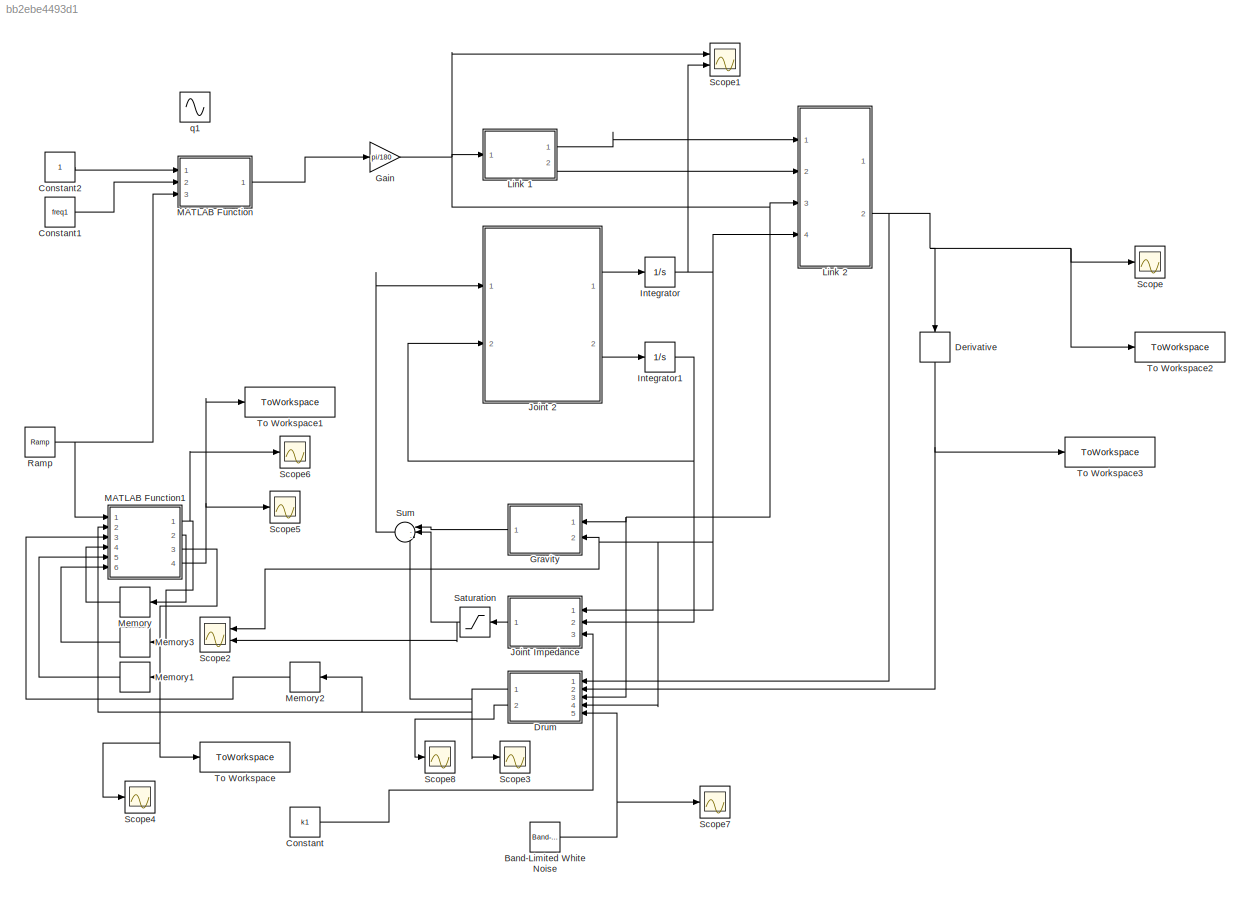
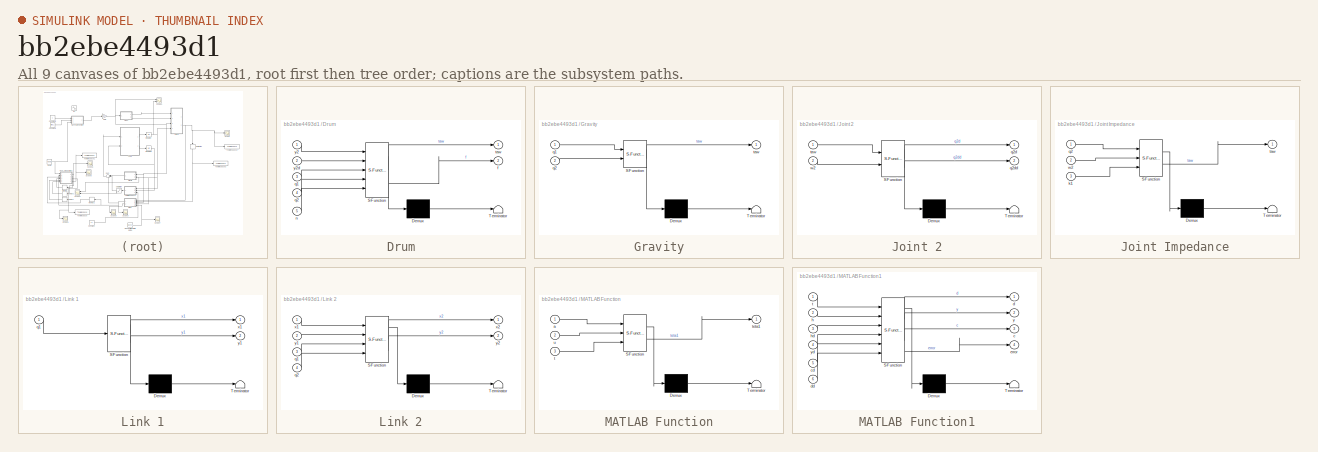
[diagram: thumbnail index - all 9 canvases of the model, root first then tree order]
MODEL slx_bb2ebe4493d1
KIND model
CONFIG AbsTol = auto
CONFIG EnableMultiTasking = off
CONFIG FixedStep = 0.00003
CONFIG MaxStep = auto
CONFIG MinStep = auto
CONFIG RelTol = 1e-3
CONFIG SampleTimeConstraint = Unconstrained
CONFIG Solver = ode8
CONFIG SolverName = ode8
CONFIG StartTime = 0.0
CONFIG StopTime = 2
BLOCK [Reference] Band-Limited White Noise  REF=simulink/Sources/Band-Limited
White Noise
  Ports = [0, 1]
  SourceBlock = simulink/Sources/Band-Limited\nWhite Noise
  SourceProductBaseCode = SL
  SourceType = Band-Limited White Noise.
BLOCK [Constant] Constant
  Value = k1
BLOCK [Constant] Constant1
  Value = freq1
BLOCK [Constant] Constant2
BLOCK [Derivative] Derivative
  NameLocation = left
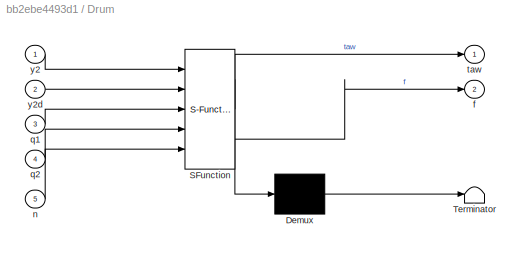
BLOCK [SubSystem] Drum
  ErrorFcn = Stateflow.Translate.translate
  NameLocation = top
  PermitHierarchicalResolution = ExplicitOnly
  Ports = [5, 2]
  RequestExecContextInheritance = off
  SFBlockType = MATLAB Function
  TreatAsAtomicUnit = on
BLOCK [Demux] Drum/ Demux 
  Outputs = 1
  Ports = [1, 1]
BLOCK [S-Function] Drum/ SFunction 
  EnableBusSupport = on
  FunctionName = sf_sfun
  PortCounts = [5 3]
  Ports = [5, 3]
  SFcnIsStateOwnerBlock = off
  SFunctionDeploymentMode = off
  Tag = Stateflow S-Function 6
BLOCK [Terminator] Drum/ Terminator 
BLOCK [Outport] Drum/f
  Port = 2
BLOCK [Inport] Drum/n
  Port = 5
BLOCK [Inport] Drum/q1
  Port = 3
BLOCK [Inport] Drum/q2
  Port = 4
BLOCK [Outport] Drum/taw
BLOCK [Inport] Drum/y2
BLOCK [Inport] Drum/y2d
  Port = 2
BLOCK [Gain] Gain
  Gain = pi/180
BLOCK [SubSystem] Gravity
  ErrorFcn = Stateflow.Translate.translate
  NameLocation = top
  PermitHierarchicalResolution = ExplicitOnly
  Ports = [2, 1]
  RequestExecContextInheritance = off
  SFBlockType = MATLAB Function
  TreatAsAtomicUnit = on
BLOCK [Demux] Gravity/ Demux 
  Outputs = 1
  Ports = [1, 1]
BLOCK [S-Function] Gravity/ SFunction 
  EnableBusSupport = on
  FunctionName = sf_sfun
  PortCounts = [2 2]
  Ports = [2, 2]
  SFcnIsStateOwnerBlock = off
  SFunctionDeploymentMode = off
  Tag = Stateflow S-Function 3
BLOCK [Terminator] Gravity/ Terminator 
BLOCK [Inport] Gravity/q1
BLOCK [Inport] Gravity/q2
  Port = 2
BLOCK [Outport] Gravity/taw
BLOCK [Integrator] Integrator
  InitialCondition = -15*pi/180
  Ports = [1, 1]
BLOCK [Integrator] Integrator1
  Ports = [1, 1]
BLOCK [SubSystem] Joint 2
  ErrorFcn = Stateflow.Translate.translate
  PermitHierarchicalResolution = ExplicitOnly
  Ports = [2, 2]
  RequestExecContextInheritance = off
  SFBlockType = MATLAB Function
  TreatAsAtomicUnit = on
BLOCK [Demux] Joint 2/ Demux 
  Outputs = 1
  Ports = [1, 1]
BLOCK [S-Function] Joint 2/ SFunction 
  EnableBusSupport = on
  FunctionName = sf_sfun
  PortCounts = [2 3]
  Ports = [2, 3]
  SFcnIsStateOwnerBlock = off
  SFunctionDeploymentMode = off
  Tag = Stateflow S-Function 1
BLOCK [Terminator] Joint 2/ Terminator 
BLOCK [Outport] Joint 2/q2d
BLOCK [Outport] Joint 2/q2dd
  Port = 2
BLOCK [Inport] Joint 2/taw
BLOCK [Inport] Joint 2/w2
  Port = 2
BLOCK [SubSystem] Joint Impedance
  ErrorFcn = Stateflow.Translate.translate
  NameLocation = top
  PermitHierarchicalResolution = ExplicitOnly
  Ports = [3, 1]
  RequestExecContextInheritance = off
  SFBlockType = MATLAB Function
  TreatAsAtomicUnit = on
BLOCK [Demux] Joint Impedance/ Demux 
  Outputs = 1
  Ports = [1, 1]
BLOCK [S-Function] Joint Impedance/ SFunction 
  EnableBusSupport = on
  FunctionName = sf_sfun
  PortCounts = [3 2]
  Ports = [3, 2]
  SFcnIsStateOwnerBlock = off
  SFunctionDeploymentMode = off
  Tag = Stateflow S-Function 5
BLOCK [Terminator] Joint Impedance/ Terminator 
BLOCK [Inport] Joint Impedance/k1
  Port = 3
BLOCK [Inport] Joint Impedance/q2
BLOCK [Outport] Joint Impedance/taw
BLOCK [Inport] Joint Impedance/w2
  Port = 2
BLOCK [SubSystem] Link 1
  ErrorFcn = Stateflow.Translate.translate
  PermitHierarchicalResolution = ExplicitOnly
  Ports = [1, 2]
  RequestExecContextInheritance = off
  SFBlockType = MATLAB Function
  TreatAsAtomicUnit = on
BLOCK [Demux] Link 1/ Demux 
  Outputs = 1
  Ports = [1, 1]
BLOCK [S-Function] Link 1/ SFunction 
  EnableBusSupport = on
  FunctionName = sf_sfun
  PortCounts = [1 3]
  Ports = [1, 3]
  SFcnIsStateOwnerBlock = off
  SFunctionDeploymentMode = off
  Tag = Stateflow S-Function 2
BLOCK [Terminator] Link 1/ Terminator 
BLOCK [Inport] Link 1/q1
BLOCK [Outport] Link 1/x1
BLOCK [Outport] Link 1/y1
  Port = 2
BLOCK [SubSystem] Link 2
  ErrorFcn = Stateflow.Translate.translate
  PermitHierarchicalResolution = ExplicitOnly
  Ports = [4, 2]
  RequestExecContextInheritance = off
  SFBlockType = MATLAB Function
  TreatAsAtomicUnit = on
BLOCK [Demux] Link 2/ Demux 
  Outputs = 1
  Ports = [1, 1]
BLOCK [S-Function] Link 2/ SFunction 
  EnableBusSupport = on
  FunctionName = sf_sfun
  PortCounts = [4 3]
  Ports = [4, 3]
  SFcnIsStateOwnerBlock = off
  SFunctionDeploymentMode = off
  Tag = Stateflow S-Function 4
BLOCK [Terminator] Link 2/ Terminator 
BLOCK [Inport] Link 2/q1
  Port = 3
BLOCK [Inport] Link 2/q2
  Port = 4
BLOCK [Inport] Link 2/x1
BLOCK [Outport] Link 2/x2
BLOCK [Inport] Link 2/y1
  Port = 2
BLOCK [Outport] Link 2/y2
  Port = 2
BLOCK [SubSystem] MATLAB Function
  ErrorFcn = Stateflow.Translate.translate
  PermitHierarchicalResolution = ExplicitOnly
  Ports = [3, 1]
  RequestExecContextInheritance = off
  SFBlockType = MATLAB Function
  TreatAsAtomicUnit = on
BLOCK [Demux] MATLAB Function/ Demux 
  Outputs = 1
  Ports = [1, 1]
BLOCK [S-Function] MATLAB Function/ SFunction 
  EnableBusSupport = on
  FunctionName = sf_sfun
  PortCounts = [3 2]
  Ports = [3, 2]
  SFcnIsStateOwnerBlock = off
  SFunctionDeploymentMode = off
  Tag = Stateflow S-Function 7
BLOCK [Terminator] MATLAB Function/ Terminator 
BLOCK [Inport] MATLAB Function/a
BLOCK [Inport] MATLAB Function/t
  Port = 3
BLOCK [Outport] MATLAB Function/teta1
BLOCK [Inport] MATLAB Function/u
  Port = 2
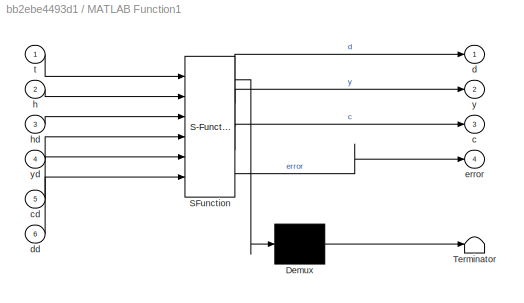
BLOCK [SubSystem] MATLAB Function1
  ErrorFcn = Stateflow.Translate.translate
  PermitHierarchicalResolution = ExplicitOnly
  Ports = [6, 4]
  RequestExecContextInheritance = off
  SFBlockType = MATLAB Function
  TreatAsAtomicUnit = on
BLOCK [Demux] MATLAB Function1/ Demux 
  Outputs = 1
  Ports = [1, 1]
BLOCK [S-Function] MATLAB Function1/ SFunction 
  EnableBusSupport = on
  FunctionName = sf_sfun
  PortCounts = [6 5]
  Ports = [6, 5]
  SFcnIsStateOwnerBlock = off
  SFunctionDeploymentMode = off
  Tag = Stateflow S-Function 8
BLOCK [Terminator] MATLAB Function1/ Terminator 
BLOCK [Outport] MATLAB Function1/c
  Port = 3
BLOCK [Inport] MATLAB Function1/cd
  Port = 5
BLOCK [Outport] MATLAB Function1/d
BLOCK [Inport] MATLAB Function1/dd
  Port = 6
BLOCK [Outport] MATLAB Function1/error
  Port = 4
BLOCK [Inport] MATLAB Function1/h
  Port = 2
BLOCK [Inport] MATLAB Function1/hd
  Port = 3
BLOCK [Inport] MATLAB Function1/t
BLOCK [Outport] MATLAB Function1/y
  Port = 2
BLOCK [Inport] MATLAB Function1/yd
  Port = 4
BLOCK [Memory] Memory
  InheritSampleTime = on
  NameLocation = top
BLOCK [Memory] Memory1
  InheritSampleTime = on
  NameLocation = top
BLOCK [Memory] Memory2
  InheritSampleTime = on
  NameLocation = top
BLOCK [Memory] Memory3
  InheritSampleTime = on
  NameLocation = top
BLOCK [Reference] Ramp  REF=simulink/Sources/Ramp
  Ports = [0, 1]
  SourceBlock = simulink/Sources/Ramp
  SourceProductBaseCode = SL
  SourceType = Ramp
BLOCK [Saturate] Saturation
  LowerLimit = -2
  NameLocation = top
  UpperLimit = 2
BLOCK [Scope] Scope
  Floating = off
  NumInputPorts = 1
  Ports = [1]
  ScopeSpecificationString = Simulink.scopes.TimeScopeBlockCfg('CurrentConfiguration', extmgr.ConfigurationSet(extmgr.Configuration('Core','General UI',true),extmgr.Configuration('Core','Source UI',true),extmgr.Configuration('Sources','WiredSimulink',true,'DataLoggingVariableName','ScopeData1'),extmgr.Configuration('Visuals','Time Domain',true,'SerializedDisplays',{struct('MinYLimReal','-0.09228','MaxYLimReal','0.11509','YLab...<+1443ch>
BLOCK [Scope] Scope1
  Floating = off
  NumInputPorts = 2
  Ports = [2]
  ScopeSpecificationString = Simulink.scopes.TimeScopeBlockCfg('CurrentConfiguration', extmgr.ConfigurationSet(extmgr.Configuration('Core','General UI',true),extmgr.Configuration('Core','Source UI',true),extmgr.Configuration('Sources','WiredSimulink',true,'DataLoggingVariableName','ScopeData2'),extmgr.Configuration('Visuals','Time Domain',true,'SerializedDisplays',{struct('MinYLimReal','-0.15272','MaxYLimReal','0.50178','YLab...<+1966ch>
BLOCK [Scope] Scope2
  Floating = off
  NameLocation = top
  NumInputPorts = 2
  Ports = [2]
  ScopeSpecificationString = Simulink.scopes.TimeScopeBlockCfg('CurrentConfiguration', extmgr.ConfigurationSet(extmgr.Configuration('Core','General UI',true),extmgr.Configuration('Core','Source UI',true),extmgr.Configuration('Sources','WiredSimulink',true,'DataLoggingVariableName','ScopeData3'),extmgr.Configuration('Visuals','Time Domain',true,'SerializedDisplays',{struct('MinYLimReal','-0.29779','MaxYLimReal','0.01481','YLab...<+2018ch>
BLOCK [Scope] Scope3
  Floating = off
  NumInputPorts = 1
  Ports = [1]
  ScopeSpecificationString = Simulink.scopes.TimeScopeBlockCfg('CurrentConfiguration', extmgr.ConfigurationSet(extmgr.Configuration('Core','General UI',true),extmgr.Configuration('Core','Source UI',true),extmgr.Configuration('Sources','WiredSimulink',true),extmgr.Configuration('Visuals','Time Domain',true,'SerializedDisplays',{struct('MinYLimReal','-1.02853','MaxYLimReal','8.73499','YLabelReal','','MinYLimMag','0.00000','MaxY...<+1427ch>
BLOCK [Scope] Scope4
  Floating = off
  NumInputPorts = 1
  Ports = [1]
  ScopeSpecificationString = Simulink.scopes.TimeScopeBlockCfg('CurrentConfiguration', extmgr.ConfigurationSet(extmgr.Configuration('Core','General UI',true),extmgr.Configuration('Core','Source UI',true),extmgr.Configuration('Sources','WiredSimulink',true,'DataLoggingVariableName','ScopeData2'),extmgr.Configuration('Visuals','Time Domain',true,'SerializedDisplays',{struct('MinYLimReal','-4.875','MaxYLimReal','43.875','YLabelR...<+1472ch>
BLOCK [Scope] Scope5
  Floating = off
  NumInputPorts = 1
  Ports = [1]
  ScopeSpecificationString = Simulink.scopes.TimeScopeBlockCfg('CurrentConfiguration', extmgr.ConfigurationSet(extmgr.Configuration('Core','General UI',true),extmgr.Configuration('Core','Source UI',true),extmgr.Configuration('Sources','WiredSimulink',true,'DataLoggingVariableName','ScopeData1'),extmgr.Configuration('Visuals','Time Domain',true,'SerializedDisplays',{struct('MinYLimReal','-0.04166','MaxYLimReal','0.3749','YLabe...<+1451ch>
BLOCK [Scope] Scope6
  Floating = off
  NumInputPorts = 1
  Ports = [1]
  ScopeSpecificationString = Simulink.scopes.TimeScopeBlockCfg('CurrentConfiguration', extmgr.ConfigurationSet(extmgr.Configuration('Core','General UI',true),extmgr.Configuration('Core','Source UI',true),extmgr.Configuration('Sources','WiredSimulink',true,'DataLoggingVariableName','ScopeData1'),extmgr.Configuration('Visuals','Time Domain',true,'SerializedDisplays',{struct('MinYLimReal','-0.02108','MaxYLimReal','0.18974','YLab...<+1451ch>
BLOCK [Scope] Scope7
  Floating = off
  NumInputPorts = 1
  Ports = [1]
  ScopeSpecificationString = Simulink.scopes.TimeScopeBlockCfg('CurrentConfiguration', extmgr.ConfigurationSet(extmgr.Configuration('Core','General UI',true),extmgr.Configuration('Core','Source UI',true),extmgr.Configuration('Sources','WiredSimulink',true,'DataLoggingVariableName','ScopeData2'),extmgr.Configuration('Visuals','Time Domain',true,'SerializedDisplays',{struct('MinYLimReal','-0.84485','MaxYLimReal','1.03041','YLab...<+1480ch>
BLOCK [Scope] Scope8
  Floating = off
  NumInputPorts = 1
  Ports = [1]
  ScopeSpecificationString = Simulink.scopes.TimeScopeBlockCfg('CurrentConfiguration', extmgr.ConfigurationSet(extmgr.Configuration('Core','General UI',true),extmgr.Configuration('Core','Source UI',true),extmgr.Configuration('Sources','WiredSimulink',true,'DataLoggingVariableName','ScopeData3'),extmgr.Configuration('Visuals','Time Domain',true,'SerializedDisplays',{struct('MinYLimReal','-30.01078','MaxYLimReal','3.53345','YLa...<+1441ch>
BLOCK [Sum] Sum
  Inputs = |--+
  NameLocation = top
  Ports = [3, 1]
BLOCK [ToWorkspace] To Workspace
  FixptAsFi = on
  MaxDataPoints = inf
  Ports = [1]
  SampleTime = -1
  Save2DSignal = 2-D array (concatenate along first dimension)
  VariableName = hit
BLOCK [ToWorkspace] To Workspace1
  FixptAsFi = on
  MaxDataPoints = inf
  Ports = [1]
  SampleTime = -1
  Save2DSignal = 2-D array (concatenate along first dimension)
  VariableName = err
BLOCK [ToWorkspace] To Workspace2
  FixptAsFi = on
  MaxDataPoints = inf
  Ports = [1]
  SampleTime = -1
  Save2DSignal = 2-D array (concatenate along first dimension)
  VariableName = yout1
BLOCK [ToWorkspace] To Workspace3
  FixptAsFi = on
  MaxDataPoints = inf
  Ports = [1]
  SampleTime = -1
  Save2DSignal = 2-D array (concatenate along first dimension)
  VariableName = ydout1
BLOCK [Sin] q1
  Amplitude = 10
  Bias = 30
  Frequency = 2*pi*3
  Phase = pi/2
  Ports = [0, 1]
  SampleTime = 0
NET Band-Limited White Noise:1 -> Drum:5, Scope7:1
LINE Constant1:1 -> MATLAB Function:2
LINE Constant2:1 -> MATLAB Function:1
LINE Constant:1 -> Joint Impedance:3
NET Derivative:1 -> Drum:2, To Workspace3:1
NET Drum:1 -> MATLAB Function1:2, Memory2:1, Scope3:1, Sum:3
LINE Drum:2 -> Scope8:1
NET Gain:1 -> Drum:3, Gravity:1, Link 1:1, Link 2:3, Scope1:1
LINE Gravity:1 -> Sum:1
NET Integrator1:1 -> Joint 2:2, Joint Impedance:2
NET Integrator:1 -> Drum:4, Gravity:2, Joint Impedance:1, Link 2:4, Scope1:2, Scope2:1
LINE Joint 2:1 -> Integrator:1
LINE Joint 2:2 -> Integrator1:1
LINE Joint Impedance:1 -> Saturation:1
LINE Link 1:1 -> Link 2:1
LINE Link 1:2 -> Link 2:2
NET Link 2:2 -> Derivative:1, Drum:1, Scope:1, To Workspace2:1
NET MATLAB Function1:1 -> Memory3:1, Scope6:1
LINE MATLAB Function1:2 -> Memory:1
NET MATLAB Function1:3 -> Memory1:1, Scope4:1, To Workspace:1
NET MATLAB Function1:4 -> Scope5:1, To Workspace1:1
LINE MATLAB Function:1 -> Gain:1
LINE Memory1:1 -> MATLAB Function1:5
LINE Memory2:1 -> MATLAB Function1:3
LINE Memory3:1 -> MATLAB Function1:6
LINE Memory:1 -> MATLAB Function1:4
NET Ramp:1 -> MATLAB Function1:1, MATLAB Function:3
NET Saturation:1 -> Scope2:2, Sum:2
LINE Sum:1 -> Joint 2:1
note: NET lines group one-source signal fan-out (src -> all destinations, sorted); 1:1 wires keep LINE
CHART Joint 2 states=1 transitions=1
  STATE_LABEL 'eML_blk_kernel()'
  STATE_LABEL 'SCRIPT:\nfunction [q2d,q2dd] = fcn(taw,w2)\n\nm=0.04;\nL=0.4;\nL2=0.3;\nD2=0.1;\nI=m*(3*L2^2-3*L2*L+L^2)/3;\n\nq2d=w2;\nq2dd=taw/I;\n'
CHART Link 1 states=1 transitions=1
  STATE_LABEL 'eML_blk_kernel()'
  STATE_LABEL 'SCRIPT:\nfunction [x1,y1] = fcn(q1)\n\nx1=0.1*cos(q1);\ny1=0.1*sin(q1);\n'
CHART Gravity states=1 transitions=1
  STATE_LABEL 'eML_blk_kernel()'
  STATE_LABEL 'SCRIPT:\nfunction taw = fcn(q1,q2)\n\nm=0.04;\ng=9.8;\nD2=0.1;\n\ntaw=m*g*D2*cos(q1+q2);\n'
CHART Link 2 states=1 transitions=1
  STATE_LABEL 'eML_blk_kernel()'
  STATE_LABEL 'SCRIPT:\nfunction [x2,y2] = fcn(x1,y1,q1,q2)\n\nx2=x1+0.3*cos(q1+q2);\ny2=y1+0.3*sin(q1+q2);\n'
CHART Joint Impedance states=1 transitions=1
  STATE_LABEL 'eML_blk_kernel()'
  STATE_LABEL 'SCRIPT:\nfunction taw = fcn(q2,w2,k1)\n\nborder=-15*pi/180;\n\n% \n% k2=200;\n% d1=0.00001;\n% d2=8;\n% \n% if q2>border\n%     taw=k1*(q2-border)+d1*w2;\n% else\n%     taw=k2*(q2-border)+d2*w2;\n% end\n\nb=.01;\n\ntaw=k1*(q2-border)+b*w2;\n\nif q2<border\n    taw=taw*50;\nend'
CHART Drum states=1 transitions=1
  STATE_LABEL 'eML_blk_kernel()'
  STATE_LABEL 'SCRIPT:\nfunction [taw,f] = fcn(y2,y2d,q1,q2,n)\n\nk=20000;\nd=.1;\n\nheight=0.07;\n\nif y2<-height\n    f=(k*(y2+height)+d*y2d)*(1+n);\nelse\n    f=0;\nend\n\ntaw=-f*0.3*cos(q1+q2);\n'
CHART MATLAB Function states=1 transitions=1
  STATE_LABEL 'eML_blk_kernel()'
  STATE_LABEL 'SCRIPT:\nfunction teta1 = fcn(a,u,t)\n\nAmp=15;\nBias=10;\n\n\n\nFreq=2*pi*u;\nPhase=pi/2;\nteta1 = Amp*sin(Freq*t+Phase) + Bias;\n'
CHART MATLAB Function1 states=1 transitions=1
  STATE_LABEL 'eML_blk_kernel()'
  STATE_LABEL 'SCRIPT:\nfunction [d,y,c,error]  = fcn(t,h,hd,yd,cd,dd)\n\n\nif h>2\n    y=t;\n    d=y-yd;\nelse\n    y=yd;\n    d=dd;\nend\nerror=abs(d-dd);\n\nif h>.01 && hd==0\n    c=cd+1;\nelse\n    c=cd;\nend'
CHART  states=0 transitions=0
CHART  states=0 transitions=0
CHART  states=0 transitions=0
CHART  states=0 transitions=0
CHART  states=0 transitions=0
CHART  states=0 transitions=0
CHART  states=0 transitions=0
CHART  states=0 transitions=0
